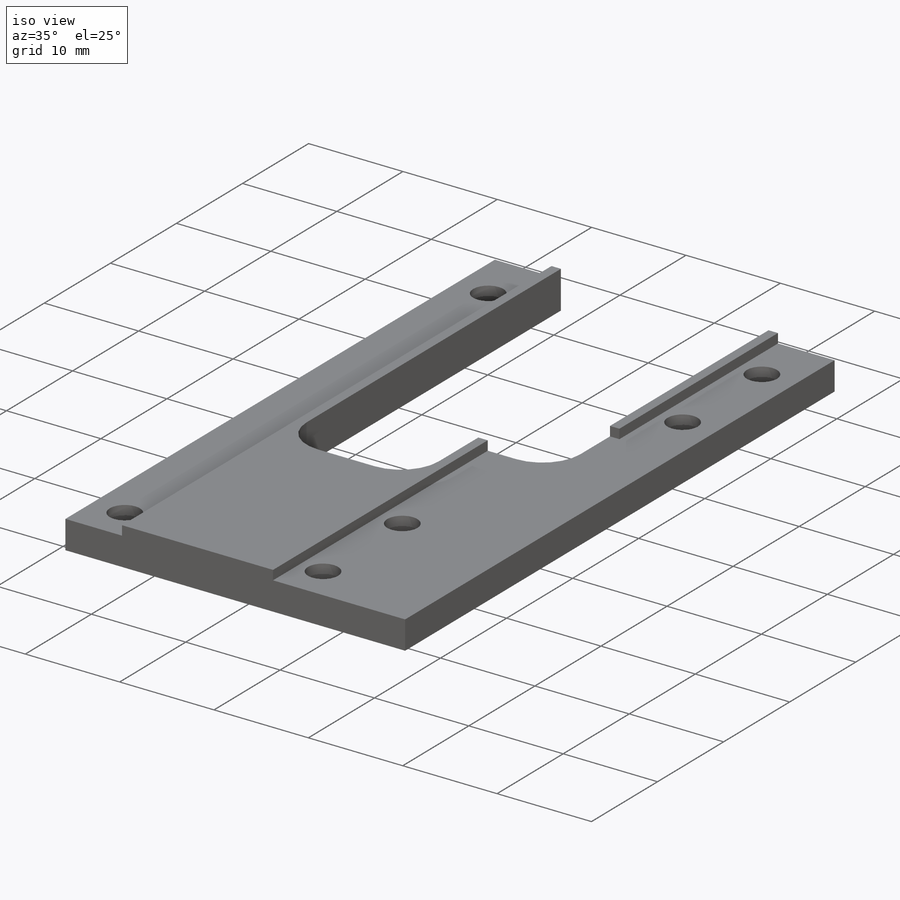
[diagram: iso view]
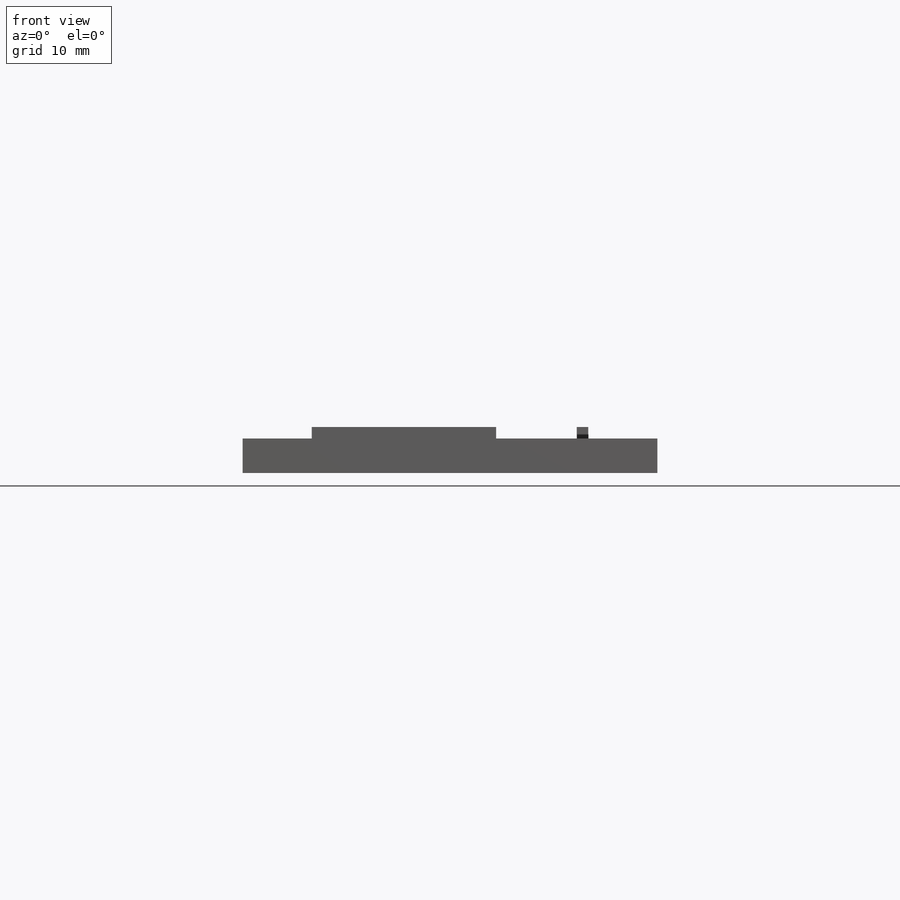
[diagram: front view]
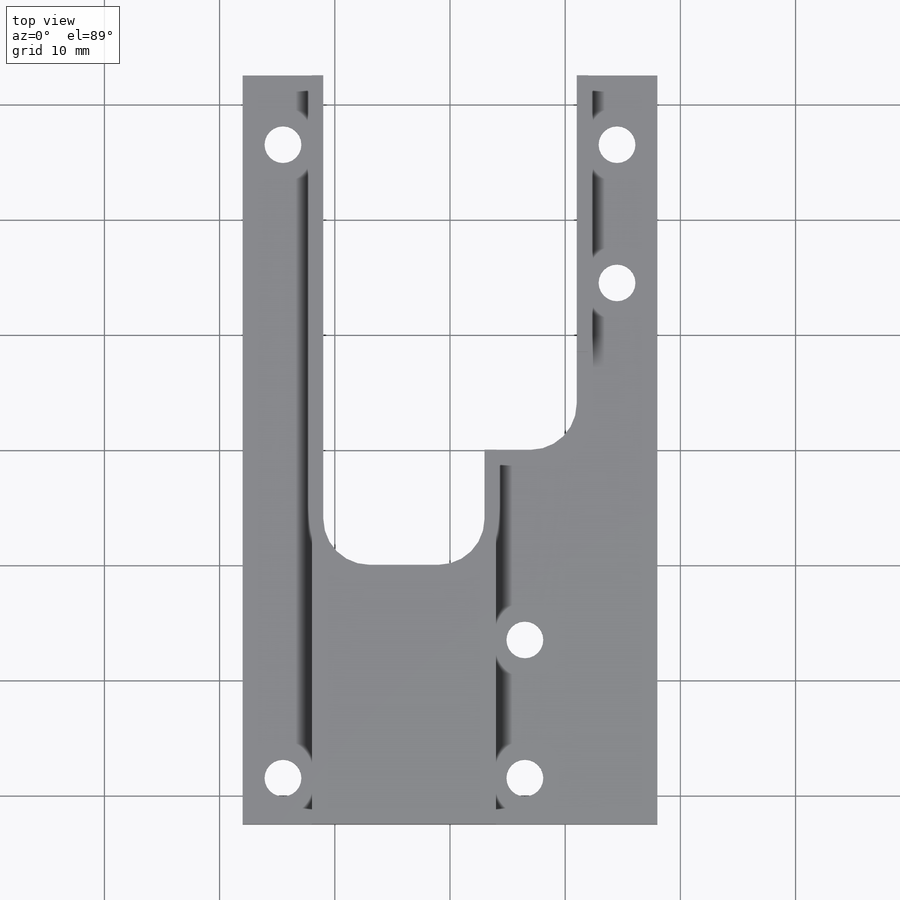
[diagram: top view]
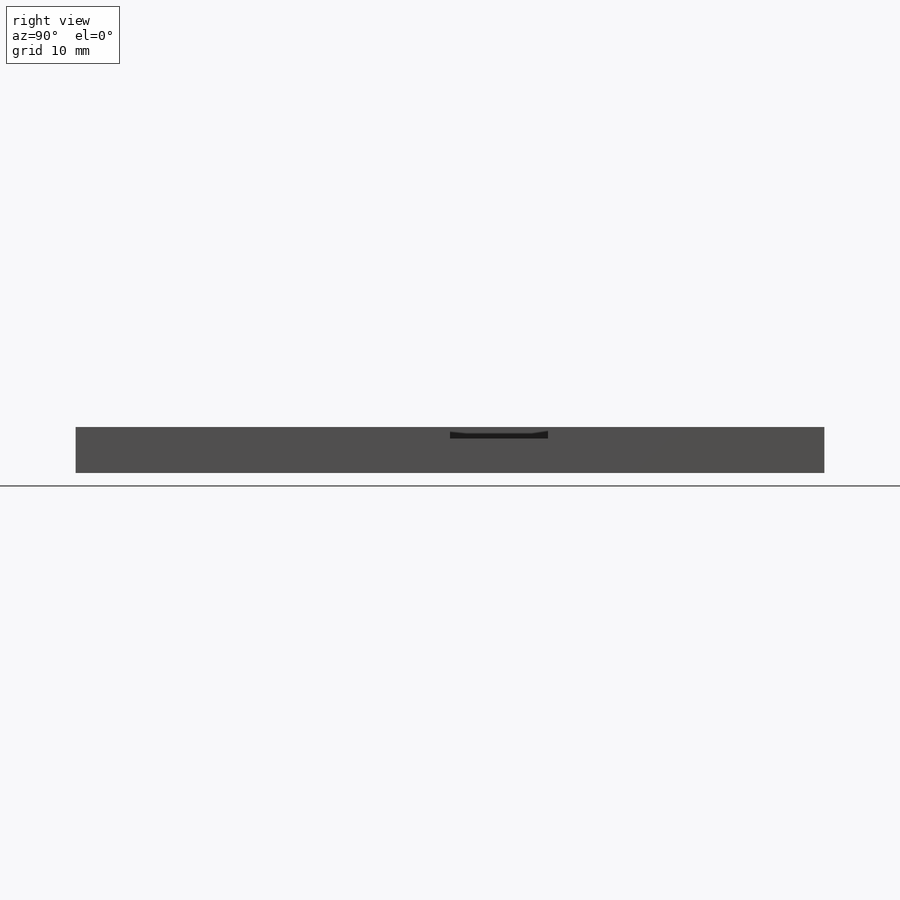
[diagram: right view]
SOLIDWORKS PART (.sldprt)
format: sldprt  version: not decoded by parser v0  size: 275,968 bytes
history: native  units: mm
features: sketch x5, plane x3, cut_extrude x2, material x1, extrude x1, fillet x1, hole x1 (+9 scaffold rows collapsed)
feature tree (23):
  scaffold x9  (default folders/planes/origin — collapsed)
  material  "Material <nicht festgelegt>"
  plane  "Ebene vorne"
  plane  "Ebene oben"
  plane  "Ebene rechts"
  sketch  "Skizze1"  dims[c1.D1=7.0mm c1.D2=7.0mm c1.D3=24.0mm c1.D4=65.0mm c2.D1=36.0mm]
  extrude  "Aufsatz-Linear austragen1"  Depth=4mm
  sketch  "Skizze2"  dims[c1.D3=8.0mm c1.D1=24.0mm c1.D2=6.0mm c2.D3=1.0mm c2.D4=8.0mm c2.D5=0.0mm c2.D1=16.0mm c3.D4=24.0mm c3.D6=10.0mm c3.D7=1.0mm c4.D6=10.0mm]
  cut_extrude  "Schnitt-Linear austragen1"  Depth=1mm
  cut_extrude  "Schnitt-Linear austragen2"  [1 undecoded]
  sketch  "Skizze2<3>"
  fillet  "Verrundung1"  Radius=4mm
  hole  "Stirnsenkung für  M3 Zylinderschraube mit Schlitz/Kreuzschlitz1"  Diameter=3.2mm Depth=4.00005mm
  sketch  "Skizze6"  dims[c1.D1=28.0mm c1.D2=14.0mm c2.D1=4.0mm c2.D2=6.0mm c2.D3=12.0mm c2.D4=17.0mm]
  sketch  "Skizze5"  dims[hole-wizard template sketch: 42 standard entries collapsed; hole parameters kept: c12.Bohrungstiefe=~4.00005mm c12.Senkdurchmesser2=6.5mm c12.Senktiefe2=2.0mm]
decode coverage: 8 of 10 modeling features carry decoded parameters
note: ~ marks probable driven/reference dimensions
note: 1 parameter value undecoded
note: suppression state not decoded; provenance and decode notes live in map.json
